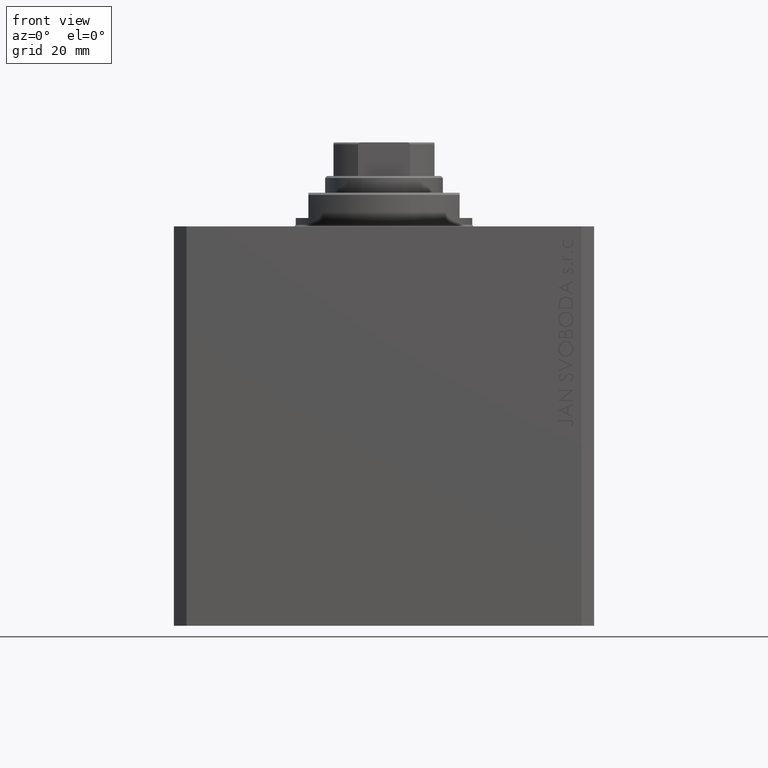
[diagram: clean part render]
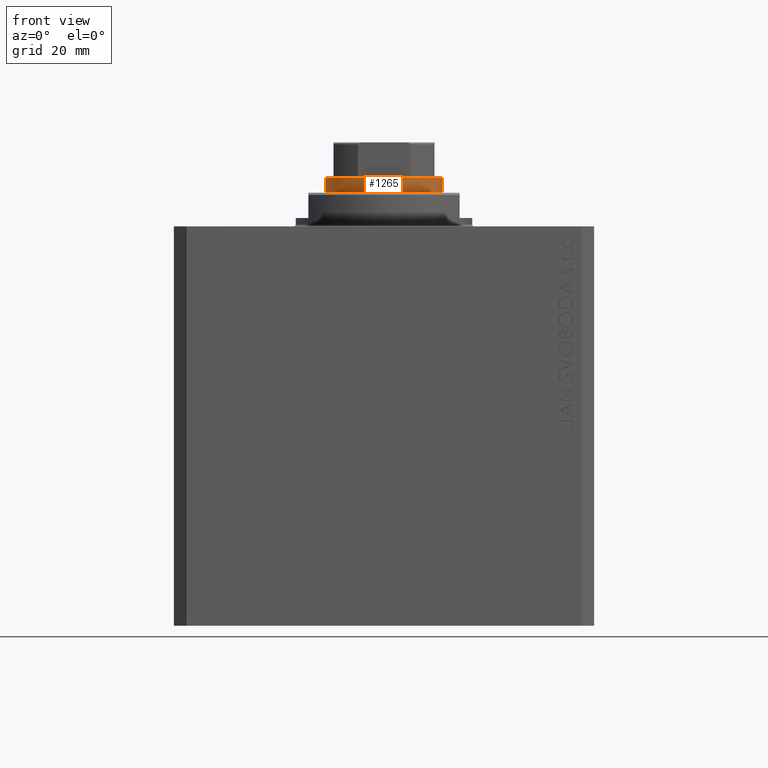
[diagram: same view with one face highlighted and labeled with its STEP entity id]
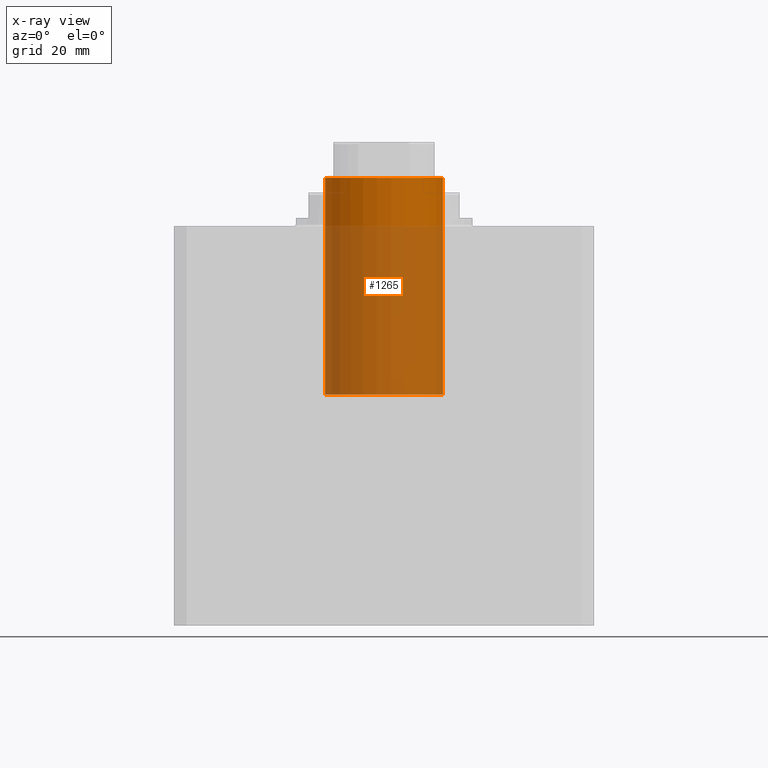
[diagram: x-ray of the same camera — body ghosted, the highlighted face saturated]
A machine part, front view. The second image highlights one B-rep face of the part: STEP entity #1265.
The next image is the same camera in x-ray: the body ghosted, the highlighted face saturated — about 78% of this face is hidden behind the body in this view.
In plain terms, the highlighted cylindrical surface (partial cylindrical patch) has radius 14 mm, axis along (-0, -0, -1).
Its self-contained STEP definition (entity closure, byte-faithful):
#870 = ORIENTED_EDGE ( 'NONE', *, *, #1655, .T. ) ;
#1265 = ADVANCED_FACE ( 'NONE', ( #30436 ), #1300, .T. ) ;
#1300 = CYLINDRICAL_SURFACE ( 'NONE', #38535, 14.00000000000000000 ) ;
#1346 = CARTESIAN_POINT ( 'NONE',  ( -14.00000000000000000, 0.000000000000000000, 95.09999999999999432 ) ) ;
#1491 = VECTOR ( 'NONE', #12322, 1000.000000000000000 ) ;
#1655 = EDGE_CURVE ( 'NONE', #33928, #19071, #28644, .T. ) ;
#1769 = CARTESIAN_POINT ( 'NONE',  ( -14.00000000000000000, 0.000000000000000000, 43.10000000000000142 ) ) ;
#3873 = ORIENTED_EDGE ( 'NONE', *, *, #8251, .F. ) ;
#4230 = AXIS2_PLACEMENT_3D ( 'NONE', #16334, #42114, #12504 ) ;
#7286 = CARTESIAN_POINT ( 'NONE',  ( 14.00000000000000000, 1.714505518806294244E-15, 94.60000000000006537 ) ) ;
#7584 = CIRCLE ( 'NONE', #32002, 14.00000000000000000 ) ;
#8251 = EDGE_CURVE ( 'NONE', #33928, #16552, #44744, .T. ) ;
#10036 = CARTESIAN_POINT ( 'NONE',  ( 14.00000000000000000, 1.714505518806294244E-15, 43.10000000000000142 ) ) ;
#11855 = EDGE_CURVE ( 'NONE', #19071, #16013, #34071, .T. ) ;
#12017 = CARTESIAN_POINT ( 'NONE',  ( 14.00000000000000000, 1.714505518806294244E-15, 95.09999999999999432 ) ) ;
#12322 = DIRECTION ( 'NONE',  ( -0.000000000000000000, -0.000000000000000000, -1.000000000000000000 ) ) ;
#12504 = DIRECTION ( 'NONE',  ( 1.000000000000000000, 0.000000000000000000, 0.000000000000000000 ) ) ;
#13208 = CARTESIAN_POINT ( 'NONE',  ( 0.000000000000000000, 0.000000000000000000, 95.09999999999999432 ) ) ;
#16013 = VERTEX_POINT ( 'NONE', #1769 ) ;
#16334 = CARTESIAN_POINT ( 'NONE',  ( 0.000000000000000000, 0.000000000000000000, 94.60000000000006537 ) ) ;
#16552 = VERTEX_POINT ( 'NONE', #10036 ) ;
#18139 = VECTOR ( 'NONE', #41631, 1000.000000000000000 ) ;
#19071 = VERTEX_POINT ( 'NONE', #33290 ) ;
#22078 = ORIENTED_EDGE ( 'NONE', *, *, #11855, .T. ) ;
#25693 = EDGE_LOOP ( 'NONE', ( #3873, #870, #22078, #32799 ) ) ;
#28644 = CIRCLE ( 'NONE', #4230, 14.00000000000000000 ) ;
#28711 = DIRECTION ( 'NONE',  ( 0.000000000000000000, 0.000000000000000000, 1.000000000000000000 ) ) ;
#30436 = FACE_OUTER_BOUND ( 'NONE', #25693, .T. ) ;
#32002 = AXIS2_PLACEMENT_3D ( 'NONE', #32534, #28711, #43513 ) ;
#32534 = CARTESIAN_POINT ( 'NONE',  ( 0.000000000000000000, 0.000000000000000000, 43.10000000000000142 ) ) ;
#32799 = ORIENTED_EDGE ( 'NONE', *, *, #40107, .T. ) ;
#33290 = CARTESIAN_POINT ( 'NONE',  ( -14.00000000000000000, 0.000000000000000000, 94.60000000000006537 ) ) ;
#33928 = VERTEX_POINT ( 'NONE', #7286 ) ;
#34071 = LINE ( 'NONE', #1346, #1491 ) ;
#38535 = AXIS2_PLACEMENT_3D ( 'NONE', #13208, #41646, #45239 ) ;
#40107 = EDGE_CURVE ( 'NONE', #16013, #16552, #7584, .T. ) ;
#41631 = DIRECTION ( 'NONE',  ( -0.000000000000000000, -0.000000000000000000, -1.000000000000000000 ) ) ;
#41646 = DIRECTION ( 'NONE',  ( -0.000000000000000000, -0.000000000000000000, -1.000000000000000000 ) ) ;
#42114 = DIRECTION ( 'NONE',  ( 0.000000000000000000, 0.000000000000000000, -1.000000000000000000 ) ) ;
#43513 = DIRECTION ( 'NONE',  ( 1.000000000000000000, 0.000000000000000000, 0.000000000000000000 ) ) ;
#44744 = LINE ( 'NONE', #12017, #18139 ) ;
#45239 = DIRECTION ( 'NONE',  ( -1.000000000000000000, 0.000000000000000000, 0.000000000000000000 ) ) ;